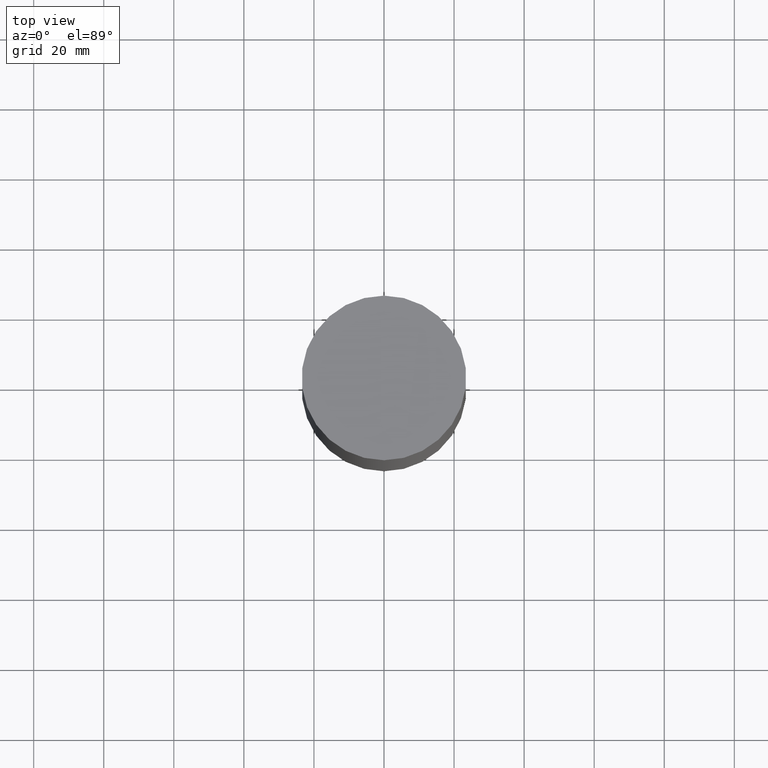
[diagram: clean part render]
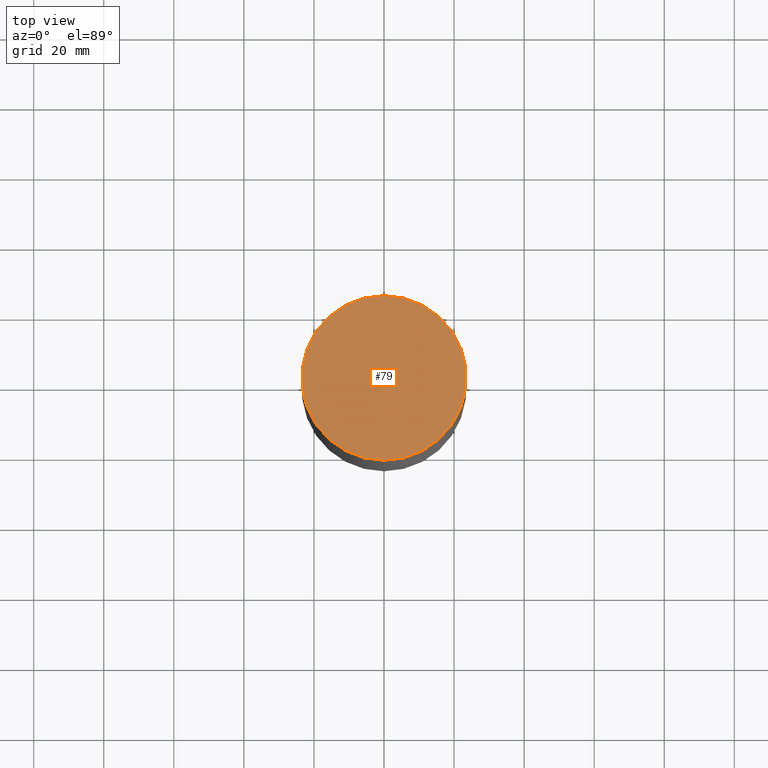
[diagram: same view with one face highlighted and labeled with its STEP entity id]
A machine part, top view. The second image highlights one B-rep face of the part: STEP entity #79.
In plain terms, the highlighted planar face has unit normal (-0, 0, 1).
Its self-contained STEP definition (entity closure, byte-faithful):
#79=ADVANCED_FACE('',(#92),#93,.T.);
#92=FACE_OUTER_BOUND('',#105,.T.);
#93=PLANE('',#106);
#105=EDGE_LOOP('',(#126));
#106=AXIS2_PLACEMENT_3D('',#127,#128,#129);
#126=ORIENTED_EDGE('',*,*,#133,.T.);
#127=CARTESIAN_POINT('',(7.2533395518809E-031,11.75,-1.27718947262039E-014));
#128=DIRECTION('',(-6.12323399573677E-017,1.08696976393224E-015,1.0));
#129=DIRECTION('',(6.17305493777098E-032,1.0,-1.08696976393224E-015));
#133=EDGE_CURVE('',#140,#140,#141,.T.);
#140=VERTEX_POINT('',#148);
#141=CIRCLE('',#149,23.5);
#148=CARTESIAN_POINT('',(1.45066791037618E-030,23.5,-2.55437894524077E-014));
#149=AXIS2_PLACEMENT_3D('',#159,#160,#161);
#159=CARTESIAN_POINT('',(1.74032777401202E-030,3.48065554802404E-030,-2.8421709430404E-014));
#160=DIRECTION('',(-6.12323399573677E-017,-1.22464679914735E-016,1.0));
#161=DIRECTION('',(-1.23259516440783E-032,1.0,1.22464679914735E-016));